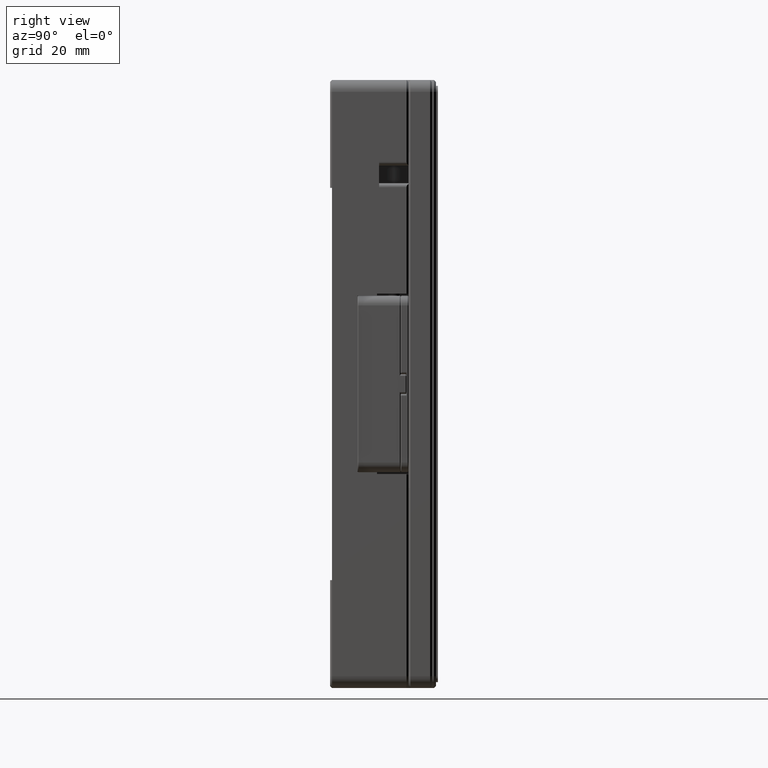
[diagram: clean part render]
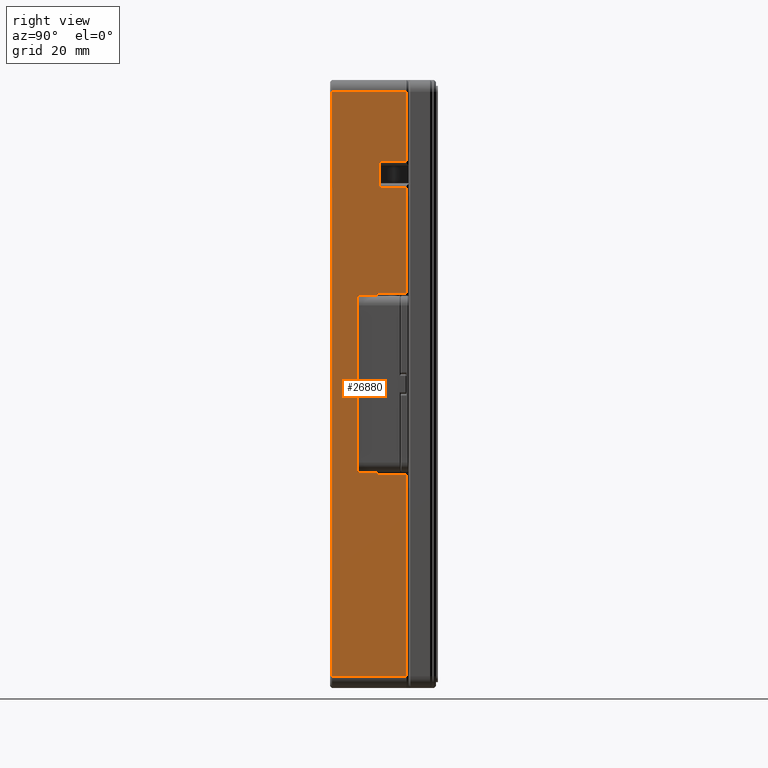
[diagram: same view with one face highlighted and labeled with its STEP entity id]
A machine part, right view. The second image highlights one B-rep face of the part: STEP entity #26880.
In plain terms, the highlighted planar face has unit normal (1, 0, 0).
Its self-contained STEP definition (entity closure, byte-faithful):
#284 = EDGE_CURVE ( 'NONE', #36798, #23056, #33854, .T. ) ;
#897 = DIRECTION ( 'NONE',  ( 0.000000000000000000, 1.000000000000000000, 0.000000000000000000 ) ) ;
#1361 = EDGE_CURVE ( 'NONE', #17220, #6636, #4252, .T. ) ;
#1543 = FACE_OUTER_BOUND ( 'NONE', #8912, .T. ) ;
#1736 = ORIENTED_EDGE ( 'NONE', *, *, #28426, .T. ) ;
#1906 = DIRECTION ( 'NONE',  ( -1.322541285546999589E-08, 1.322564138921999891E-08, 0.9999999999999998890 ) ) ;
#2062 = VERTEX_POINT ( 'NONE', #41895 ) ;
#2515 = DIRECTION ( 'NONE',  ( -1.786129128660999280E-08, -1.844407715966999302E-08, -0.9999999999999996669 ) ) ;
#2817 = CARTESIAN_POINT ( 'NONE',  ( 50.00000000000000000, -8.000000000000000000, 22.50000000000000000 ) ) ;
#2914 = EDGE_CURVE ( 'NONE', #41177, #17220, #24791, .T. ) ;
#2916 = ORIENTED_EDGE ( 'NONE', *, *, #30447, .F. ) ;
#3070 = VERTEX_POINT ( 'NONE', #22464 ) ;
#3278 = DIRECTION ( 'NONE',  ( 0.000000000000000000, -1.000000000000000000, 0.000000000000000000 ) ) ;
#3541 = VECTOR ( 'NONE', #21853, 1000.000000000000000 ) ;
#3892 = DIRECTION ( 'NONE',  ( 0.000000000000000000, -1.000000000000000000, 0.000000000000000000 ) ) ;
#4039 = ORIENTED_EDGE ( 'NONE', *, *, #1361, .F. ) ;
#4236 = VERTEX_POINT ( 'NONE', #12333 ) ;
#4252 = LINE ( 'NONE', #18273, #44309 ) ;
#4768 = EDGE_CURVE ( 'NONE', #11197, #6196, #30918, .T. ) ;
#6058 = DIRECTION ( 'NONE',  ( 1.301322680283999721E-08, -1.343782771020999846E-08, 0.9999999999999998890 ) ) ;
#6196 = VERTEX_POINT ( 'NONE', #27202 ) ;
#6421 = LINE ( 'NONE', #17237, #30363 ) ;
#6474 = LINE ( 'NONE', #2817, #10813 ) ;
#6636 = VERTEX_POINT ( 'NONE', #9212 ) ;
#6696 = CARTESIAN_POINT ( 'NONE',  ( 50.00000000000000000, -8.000000000000000000, -23.00000000000000000 ) ) ;
#6752 = LINE ( 'NONE', #34839, #35342 ) ;
#7188 = DIRECTION ( 'NONE',  ( 0.000000000000000000, -1.000000000000000000, 0.000000000000000000 ) ) ;
#7388 = ORIENTED_EDGE ( 'NONE', *, *, #16131, .T. ) ;
#7645 = VERTEX_POINT ( 'NONE', #6696 ) ;
#7826 = ORIENTED_EDGE ( 'NONE', *, *, #44566, .F. ) ;
#8130 = CARTESIAN_POINT ( 'NONE',  ( 50.00000000000000000, -0.5000381071895999563, 74.50000000000000000 ) ) ;
#8912 = EDGE_LOOP ( 'NONE', ( #40359, #1736, #20814, #30602, #9685, #34381, #8933, #13588, #38815, #7388, #25327, #10621, #2916, #42439, #7826, #4039, #22907, #29605 ) ) ;
#8933 = ORIENTED_EDGE ( 'NONE', *, *, #284, .F. ) ;
#9184 = VERTEX_POINT ( 'NONE', #8130 ) ;
#9212 = CARTESIAN_POINT ( 'NONE',  ( 50.00000000000000000, -8.000000000000000000, 23.00000000000000000 ) ) ;
#9685 = ORIENTED_EDGE ( 'NONE', *, *, #4768, .F. ) ;
#10282 = LINE ( 'NONE', #27988, #26411 ) ;
#10621 = ORIENTED_EDGE ( 'NONE', *, *, #39963, .T. ) ;
#10783 = CARTESIAN_POINT ( 'NONE',  ( 50.00000031881999973, -0.4999996707732000112, 74.50000002023999457 ) ) ;
#10810 = CARTESIAN_POINT ( 'NONE',  ( 50.00000000000000000, -7.500000000000000000, 50.14999999999999858 ) ) ;
#10813 = VECTOR ( 'NONE', #3278, 1000.000000000000000 ) ;
#11197 = VERTEX_POINT ( 'NONE', #32440 ) ;
#11641 = AXIS2_PLACEMENT_3D ( 'NONE', #22695, #15788, #11888 ) ;
#11888 = DIRECTION ( 'NONE',  ( 0.000000000000000000, 1.000000000000000000, 0.000000000000000000 ) ) ;
#12333 = CARTESIAN_POINT ( 'NONE',  ( 50.00000000000000000, -7.500000000000000000, 50.14999999999999858 ) ) ;
#13177 = CARTESIAN_POINT ( 'NONE',  ( 50.00000000000000000, -19.50000000000000000, 50.00000000000000000 ) ) ;
#13588 = ORIENTED_EDGE ( 'NONE', *, *, #35016, .F. ) ;
#13633 = CARTESIAN_POINT ( 'NONE',  ( 50.00000000000000000, -19.50000000000000000, -50.00000000000000000 ) ) ;
#13790 = VECTOR ( 'NONE', #43947, 1000.000000000000000 ) ;
#14114 = CARTESIAN_POINT ( 'NONE',  ( 50.00000000000000000, -19.49996189280999914, -74.50000000000000000 ) ) ;
#14856 = CARTESIAN_POINT ( 'NONE',  ( 50.00000000000000000, -0.5000000000000000000, 56.64999999999999858 ) ) ;
#15152 = VERTEX_POINT ( 'NONE', #36869 ) ;
#15450 = VECTOR ( 'NONE', #897, 1000.000000000000000 ) ;
#15788 = DIRECTION ( 'NONE',  ( 1.000000000000000000, 0.000000000000000000, 0.000000000000000000 ) ) ;
#15811 = CARTESIAN_POINT ( 'NONE',  ( 50.00000000000000000, -0.5000000000000000000, -23.00000000000000000 ) ) ;
#15844 = EDGE_CURVE ( 'NONE', #9184, #6196, #42288, .T. ) ;
#16131 = EDGE_CURVE ( 'NONE', #21565, #7645, #10282, .T. ) ;
#16980 = LINE ( 'NONE', #24359, #38257 ) ;
#17220 = VERTEX_POINT ( 'NONE', #17977 ) ;
#17237 = CARTESIAN_POINT ( 'NONE',  ( 50.00000000000000000, -19.50000000000000000, 50.00000000000000000 ) ) ;
#17577 = CARTESIAN_POINT ( 'NONE',  ( 50.00000000000000000, -0.5000000000000000000, 50.14999999999999858 ) ) ;
#17625 = VECTOR ( 'NONE', #37196, 1000.000000000000114 ) ;
#17793 = VERTEX_POINT ( 'NONE', #32199 ) ;
#17977 = CARTESIAN_POINT ( 'NONE',  ( 50.00000000000000000, -0.5000000000000000000, 23.00000000000000000 ) ) ;
#18273 = CARTESIAN_POINT ( 'NONE',  ( 50.00000000000000000, -0.5000000000000000000, 23.00000000000000000 ) ) ;
#20399 = DIRECTION ( 'NONE',  ( 0.000000000000000000, -1.000000000000000000, 0.000000000000000000 ) ) ;
#20701 = VECTOR ( 'NONE', #1906, 999.9999999999998863 ) ;
#20814 = ORIENTED_EDGE ( 'NONE', *, *, #42250, .F. ) ;
#21565 = VERTEX_POINT ( 'NONE', #24727 ) ;
#21821 = CARTESIAN_POINT ( 'NONE',  ( 50.00000000000000000, -7.500000000000000000, 56.64999999999999858 ) ) ;
#21853 = DIRECTION ( 'NONE',  ( 0.000000000000000000, 0.000000000000000000, 1.000000000000000000 ) ) ;
#21863 = LINE ( 'NONE', #24648, #25163 ) ;
#22272 = LINE ( 'NONE', #21821, #15450 ) ;
#22464 = CARTESIAN_POINT ( 'NONE',  ( 50.00000000000000000, -13.00000000000000000, 22.50000000000000000 ) ) ;
#22695 = CARTESIAN_POINT ( 'NONE',  ( 50.00000000000000000, 0.000000000000000000, 77.50000000000000000 ) ) ;
#22907 = ORIENTED_EDGE ( 'NONE', *, *, #2914, .F. ) ;
#23056 = VERTEX_POINT ( 'NONE', #13633 ) ;
#23688 = CARTESIAN_POINT ( 'NONE',  ( 50.00000000000000000, -8.000000000000000000, -22.50000000000000000 ) ) ;
#24359 = CARTESIAN_POINT ( 'NONE',  ( 50.00000031881999973, -0.4999996707732000112, 74.50000002023999457 ) ) ;
#24648 = CARTESIAN_POINT ( 'NONE',  ( 50.00000000000000000, -8.000000000000000000, 23.00000000000000000 ) ) ;
#24652 = CARTESIAN_POINT ( 'NONE',  ( 50.00000000000000000, -7.500000000000000000, 56.64999999999999858 ) ) ;
#24727 = CARTESIAN_POINT ( 'NONE',  ( 50.00000000000000000, -0.5000000000000000000, -23.00000000000000000 ) ) ;
#24791 = LINE ( 'NONE', #28675, #31149 ) ;
#25090 = LINE ( 'NONE', #10810, #3541 ) ;
#25132 = EDGE_CURVE ( 'NONE', #11197, #23056, #6421, .T. ) ;
#25163 = VECTOR ( 'NONE', #35200, 1000.000000000000000 ) ;
#25327 = ORIENTED_EDGE ( 'NONE', *, *, #43618, .F. ) ;
#26129 = CARTESIAN_POINT ( 'NONE',  ( 50.00000000000000000, -13.00000000000000000, -22.50000000000000000 ) ) ;
#26381 = PLANE ( 'NONE',  #11641 ) ;
#26411 = VECTOR ( 'NONE', #20399, 1000.000000000000000 ) ;
#26496 = LINE ( 'NONE', #43730, #13790 ) ;
#26880 = ADVANCED_FACE ( 'NONE', ( #1543 ), #26381, .T. ) ;
#27202 = CARTESIAN_POINT ( 'NONE',  ( 50.00000000000000000, -19.49996189280999914, 74.50000000000000000 ) ) ;
#27926 = LINE ( 'NONE', #35504, #35516 ) ;
#27988 = CARTESIAN_POINT ( 'NONE',  ( 50.00000000000000000, -0.5000000000000000000, -23.00000000000000000 ) ) ;
#28426 = EDGE_CURVE ( 'NONE', #43145, #28843, #22272, .T. ) ;
#28534 = EDGE_CURVE ( 'NONE', #21565, #2062, #36738, .T. ) ;
#28675 = CARTESIAN_POINT ( 'NONE',  ( 50.00000000000000000, -0.5000000000000000000, 50.14999999999999858 ) ) ;
#28843 = VERTEX_POINT ( 'NONE', #14856 ) ;
#29605 = ORIENTED_EDGE ( 'NONE', *, *, #39084, .T. ) ;
#30049 = VECTOR ( 'NONE', #35393, 1000.000000000000000 ) ;
#30363 = VECTOR ( 'NONE', #31509, 1000.000000000000000 ) ;
#30447 = EDGE_CURVE ( 'NONE', #3070, #33584, #6752, .T. ) ;
#30602 = ORIENTED_EDGE ( 'NONE', *, *, #15844, .T. ) ;
#30918 = LINE ( 'NONE', #13177, #34019 ) ;
#31149 = VECTOR ( 'NONE', #38783, 1000.000000000000000 ) ;
#31278 = LINE ( 'NONE', #23688, #39746 ) ;
#31395 = DIRECTION ( 'NONE',  ( 0.000000000000000000, 0.000000000000000000, -1.000000000000000000 ) ) ;
#31509 = DIRECTION ( 'NONE',  ( 0.000000000000000000, 0.000000000000000000, -1.000000000000000000 ) ) ;
#32189 = CARTESIAN_POINT ( 'NONE',  ( 50.00000000000000000, -0.5000000000000000000, 50.14999999999999858 ) ) ;
#32199 = CARTESIAN_POINT ( 'NONE',  ( 50.00000000000000000, -8.000000000000000000, 22.50000000000000000 ) ) ;
#32440 = CARTESIAN_POINT ( 'NONE',  ( 50.00000000000000000, -19.50000000000000000, 50.00000000000000000 ) ) ;
#33584 = VERTEX_POINT ( 'NONE', #26129 ) ;
#33854 = LINE ( 'NONE', #36849, #20701 ) ;
#34019 = VECTOR ( 'NONE', #6058, 999.9999999999998863 ) ;
#34381 = ORIENTED_EDGE ( 'NONE', *, *, #25132, .T. ) ;
#34839 = CARTESIAN_POINT ( 'NONE',  ( 50.00000000000000000, -13.00000000000000000, 22.50000000000000000 ) ) ;
#35016 = EDGE_CURVE ( 'NONE', #2062, #36798, #27926, .T. ) ;
#35200 = DIRECTION ( 'NONE',  ( 0.000000000000000000, 0.000000000000000000, -1.000000000000000000 ) ) ;
#35342 = VECTOR ( 'NONE', #31395, 1000.000000000000000 ) ;
#35393 = DIRECTION ( 'NONE',  ( 0.000000000000000000, -1.000000000000000000, 0.000000000000000000 ) ) ;
#35504 = CARTESIAN_POINT ( 'NONE',  ( 50.00000032402000016, -0.4999996759718000061, -74.50000000017999469 ) ) ;
#35516 = VECTOR ( 'NONE', #7188, 1000.000000000000000 ) ;
#36738 = LINE ( 'NONE', #15811, #17625 ) ;
#36798 = VERTEX_POINT ( 'NONE', #14114 ) ;
#36849 = CARTESIAN_POINT ( 'NONE',  ( 50.00000032402000016, -19.50000032402999750, -74.50000000017999469 ) ) ;
#36869 = CARTESIAN_POINT ( 'NONE',  ( 50.00000000000000000, -8.000000000000000000, -22.50000000000000000 ) ) ;
#37196 = DIRECTION ( 'NONE',  ( 6.291701537303998697E-09, 6.291809679493999796E-09, -0.9999999999999998890 ) ) ;
#37700 = DIRECTION ( 'NONE',  ( 0.000000000000000000, 0.000000000000000000, -1.000000000000000000 ) ) ;
#38257 = VECTOR ( 'NONE', #2515, 1000.000000000000114 ) ;
#38754 = DIRECTION ( 'NONE',  ( 0.000000000000000000, -1.000000000000000000, 0.000000000000000000 ) ) ;
#38783 = DIRECTION ( 'NONE',  ( 0.000000000000000000, 0.000000000000000000, -1.000000000000000000 ) ) ;
#38815 = ORIENTED_EDGE ( 'NONE', *, *, #28534, .F. ) ;
#39084 = EDGE_CURVE ( 'NONE', #41177, #4236, #39529, .T. ) ;
#39529 = LINE ( 'NONE', #32189, #40885 ) ;
#39668 = EDGE_CURVE ( 'NONE', #17793, #3070, #6474, .T. ) ;
#39746 = VECTOR ( 'NONE', #37700, 1000.000000000000000 ) ;
#39963 = EDGE_CURVE ( 'NONE', #15152, #33584, #26496, .T. ) ;
#40359 = ORIENTED_EDGE ( 'NONE', *, *, #40850, .T. ) ;
#40850 = EDGE_CURVE ( 'NONE', #4236, #43145, #25090, .T. ) ;
#40885 = VECTOR ( 'NONE', #3892, 1000.000000000000000 ) ;
#41177 = VERTEX_POINT ( 'NONE', #17577 ) ;
#41895 = CARTESIAN_POINT ( 'NONE',  ( 50.00000000000000000, -0.5000381071895999563, -74.50000000000000000 ) ) ;
#42250 = EDGE_CURVE ( 'NONE', #9184, #28843, #16980, .T. ) ;
#42288 = LINE ( 'NONE', #10783, #30049 ) ;
#42439 = ORIENTED_EDGE ( 'NONE', *, *, #39668, .F. ) ;
#43145 = VERTEX_POINT ( 'NONE', #24652 ) ;
#43618 = EDGE_CURVE ( 'NONE', #15152, #7645, #31278, .T. ) ;
#43730 = CARTESIAN_POINT ( 'NONE',  ( 50.00000000000000000, -8.000000000000000000, -22.50000000000000000 ) ) ;
#43947 = DIRECTION ( 'NONE',  ( 0.000000000000000000, -1.000000000000000000, 0.000000000000000000 ) ) ;
#44309 = VECTOR ( 'NONE', #38754, 1000.000000000000000 ) ;
#44566 = EDGE_CURVE ( 'NONE', #6636, #17793, #21863, .T. ) ;